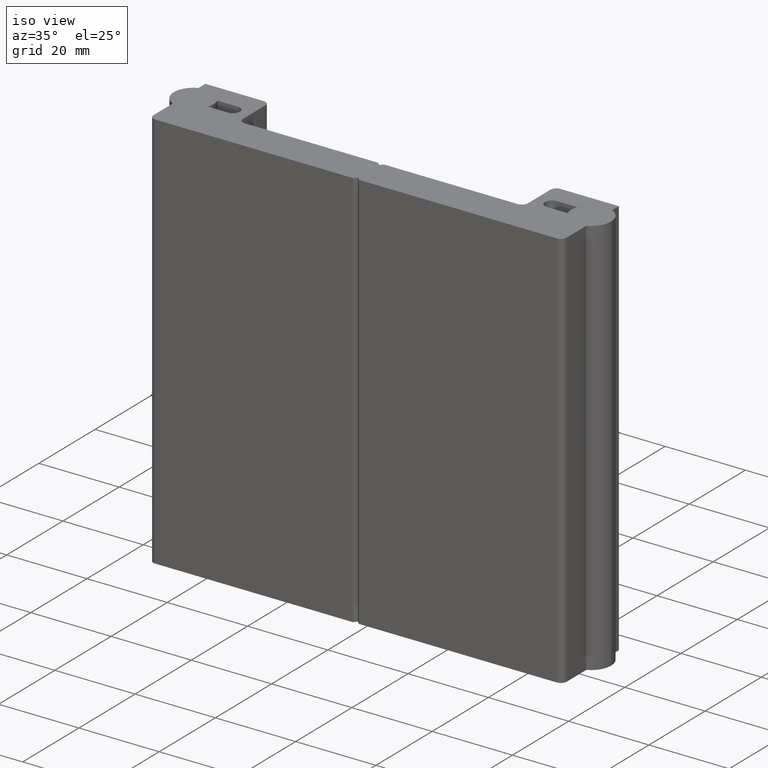
[diagram: clean part render]
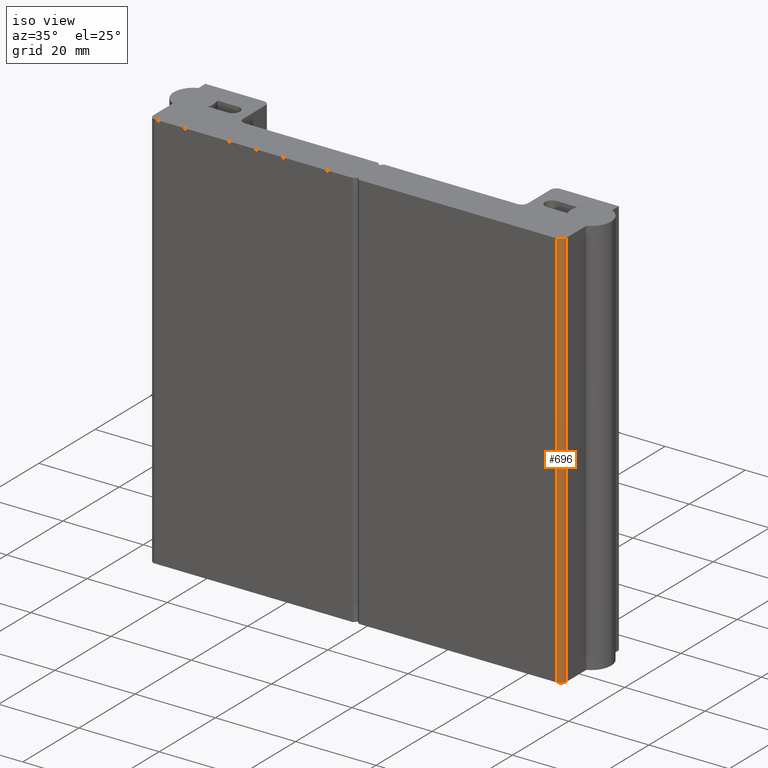
[diagram: same view with one face highlighted and labeled with its STEP entity id]
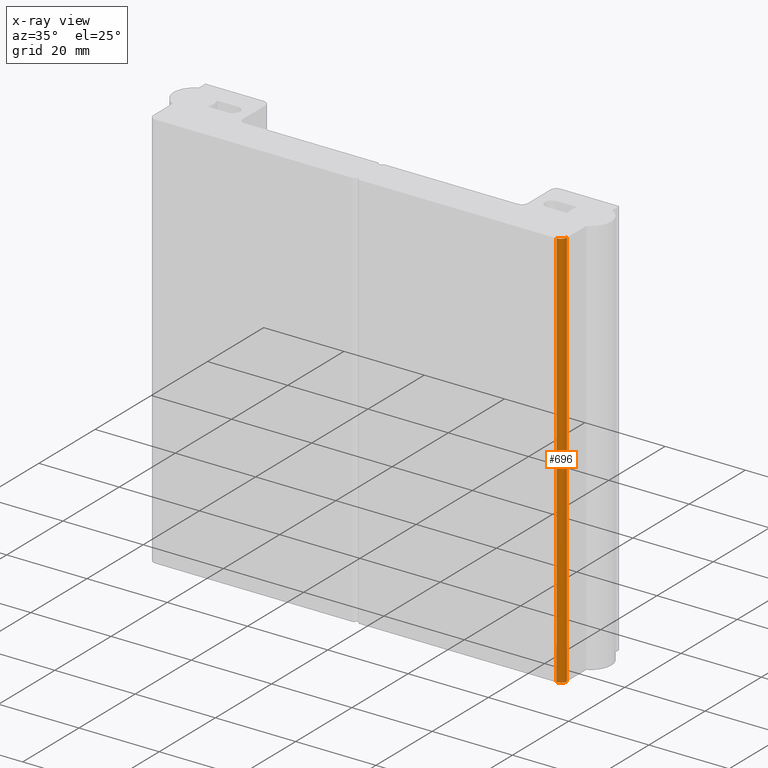
[diagram: x-ray of the same camera — body ghosted, the highlighted face saturated]
A machine part, iso view. The second image highlights one B-rep face of the part: STEP entity #696.
The next image is the same camera in x-ray: the body ghosted, the highlighted face saturated — about 0% of this face is hidden behind the body in this view.
In plain terms, the highlighted cylindrical surface (edge-blend (fillet) strip) has radius 1.5 mm, axis along (0, 0, 1).
Its self-contained STEP definition (entity closure, byte-faithful):
#74=FACE_OUTER_BOUND('',#111,.T.);
#111=EDGE_LOOP('',(#592,#593,#594,#595));
#188=LINE('',#1214,#261);
#189=LINE('',#1215,#262);
#261=VECTOR('',#986,10.);
#262=VECTOR('',#987,10.);
#293=CIRCLE('',#795,1.5);
#297=CIRCLE('',#802,1.5);
#340=VERTEX_POINT('',#1145);
#341=VERTEX_POINT('',#1147);
#355=VERTEX_POINT('',#1181);
#356=VERTEX_POINT('',#1183);
#417=EDGE_CURVE('',#341,#340,#293,.T.);
#435=EDGE_CURVE('',#356,#355,#297,.T.);
#452=EDGE_CURVE('',#355,#341,#188,.T.);
#453=EDGE_CURVE('',#340,#356,#189,.T.);
#592=ORIENTED_EDGE('',*,*,#435,.T.);
#593=ORIENTED_EDGE('',*,*,#452,.T.);
#594=ORIENTED_EDGE('',*,*,#417,.T.);
#595=ORIENTED_EDGE('',*,*,#453,.T.);
#673=CYLINDRICAL_SURFACE('',#808,1.5);
#696=ADVANCED_FACE('',(#74),#673,.T.);
#795=AXIS2_PLACEMENT_3D('',#1148,#931,#932);
#802=AXIS2_PLACEMENT_3D('',#1184,#959,#960);
#808=AXIS2_PLACEMENT_3D('',#1213,#984,#985);
#931=DIRECTION('center_axis',(0.,0.,1.));
#932=DIRECTION('ref_axis',(0.707106781186549,-0.707106781186546,0.));
#959=DIRECTION('center_axis',(0.,0.,-1.));
#960=DIRECTION('ref_axis',(0.707106781186549,-0.707106781186546,0.));
#984=DIRECTION('center_axis',(0.,0.,1.));
#985=DIRECTION('ref_axis',(0.707106781186549,-0.707106781186546,0.));
#986=DIRECTION('',(0.,0.,-1.));
#987=DIRECTION('',(0.,0.,1.));
#1145=CARTESIAN_POINT('',(51.5,-8.5,0.));
#1147=CARTESIAN_POINT('',(50.,-10.,0.));
#1148=CARTESIAN_POINT('Origin',(50.,-8.5,0.));
#1181=CARTESIAN_POINT('',(50.,-10.,100.));
#1183=CARTESIAN_POINT('',(51.5,-8.5,100.));
#1184=CARTESIAN_POINT('Origin',(50.,-8.5,100.));
#1213=CARTESIAN_POINT('Origin',(50.,-8.5,0.));
#1214=CARTESIAN_POINT('',(50.,-10.,0.));
#1215=CARTESIAN_POINT('',(51.5,-8.5,0.));